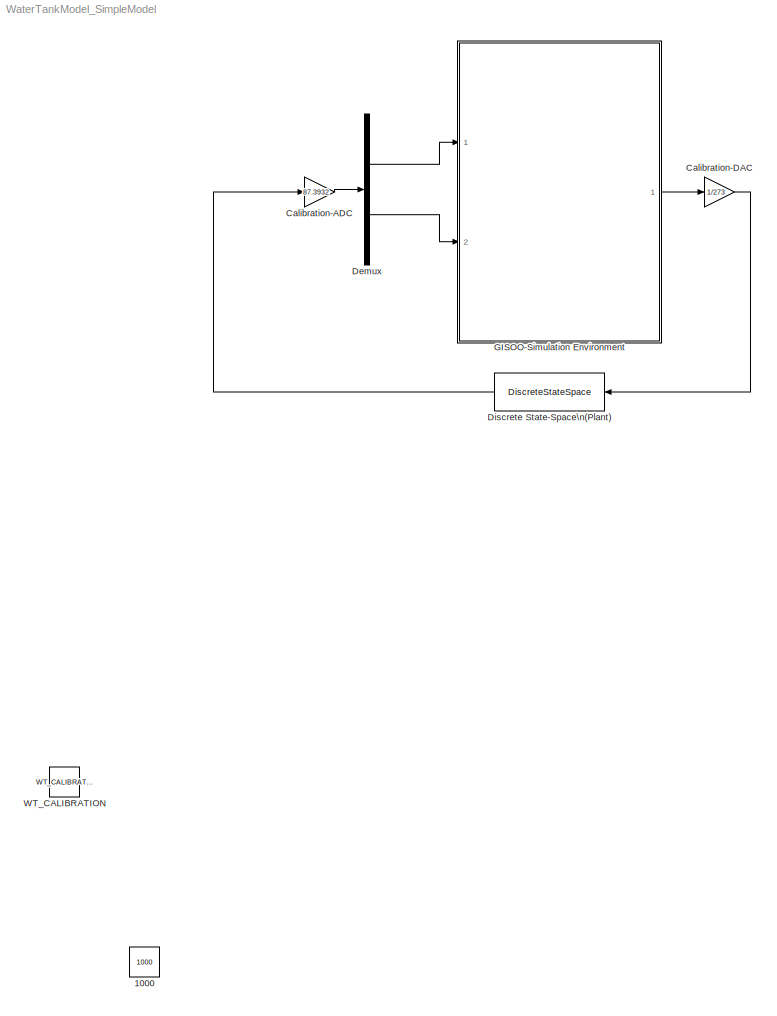
MODEL WaterTankModel_SimpleModel
KIND model
CONFIG InitFcn = initparametersDACADC\nWT_SerialCom_Model
BLOCK [Constant] 1000
  SID = 114
  Value = 1000
BLOCK [Gain] Calibration-ADC
  Gain = 87.3932
  OutDataTypeStr = Inherit: Inherit via internal rule
  ParamDataTypeStr = Inherit: Inherit via internal rule
  SID = 5
  SaturateOnIntegerOverflow = off
BLOCK [Gain] Calibration-DAC
  Gain = 1/273
  OutDataTypeStr = Inherit: Inherit via internal rule
  ParamDataTypeStr = Inherit: Inherit via internal rule
  SID = 14
  SaturateOnIntegerOverflow = off
BLOCK [Demux] Demux
  DisplayOption = bar
  Outputs = 2
  Ports = [1, 2]
  SID = 6
BLOCK [DiscreteStateSpace] Discrete State-Space\n(Plant)
  A = Ad
  B = Bd
  C = Cd
  D = Dd
  SID = 2
  SampleTime = -1
  X0 = x0
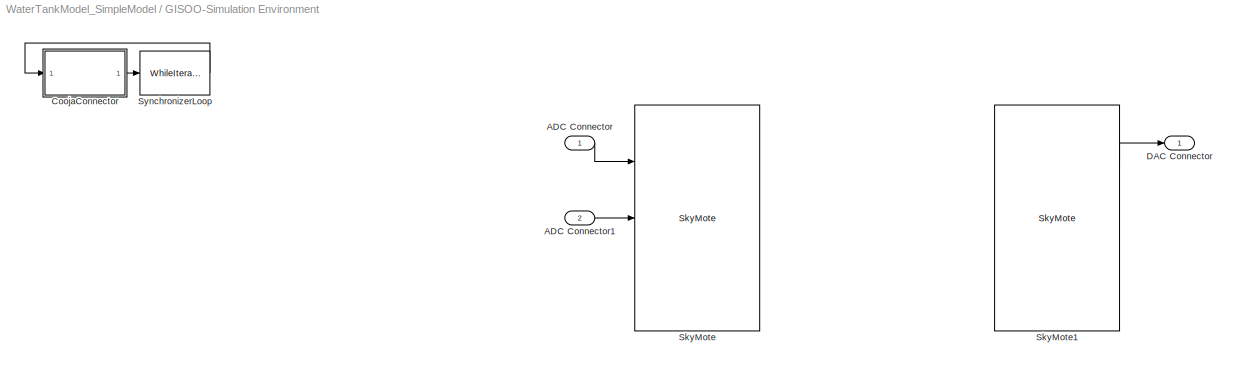
BLOCK [SubSystem] GISOO-Simulation Environment
  AncestorBlock = GisooLib/GISOO-Simulation Environment
  FunctionWithSeparateData = off
  MaskHideContents = off
  MinAlgLoopOccurrences = off
  Opaque = off
  Ports = [2, 1]
  PropExecContextOutsideSubsystem = off
  RTWSystemCode = Auto
  RequestExecContextInheritance = off
  SID = 157
  TreatAsAtomicUnit = on
BLOCK [Inport] GISOO-Simulation Environment/ADC Connector
  IconDisplay = Port number
  SID = 157:332
BLOCK [Inport] GISOO-Simulation Environment/ADC Connector1
  IconDisplay = Port number
  Port = 2
  SID = 157:333
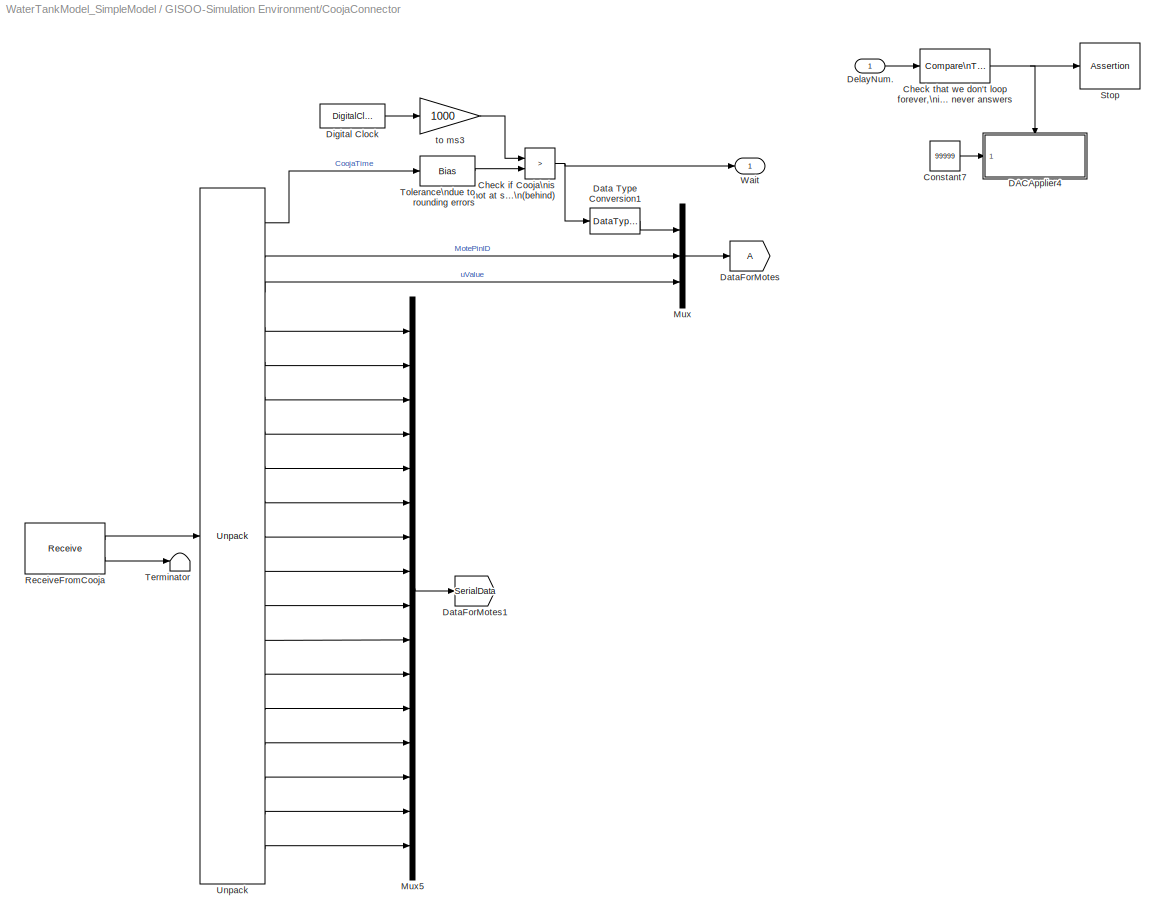
BLOCK [SubSystem] GISOO-Simulation Environment/CoojaConnector
  FunctionWithSeparateData = off
  MaskHideContents = off
  MinAlgLoopOccurrences = off
  Opaque = off
  Ports = [1, 1]
  PropExecContextOutsideSubsystem = off
  RTWSystemCode = Auto
  RequestExecContextInheritance = off
  SID = 157:275
BLOCK [RelationalOperator] GISOO-Simulation Environment/CoojaConnector/Check if Cooja\nis not at same time\n(behind)
  InputSameDT = off
  Operator = >
  OutDataTypeStr = boolean
  Ports = [2, 1]
  SID = 157:277
BLOCK [Reference] GISOO-Simulation Environment/CoojaConnector/Check that we don't loop forever,\nif Cooja never answers  REF=simulink/Logic and Bit\nOperations/Compare\nTo Constant
  OutDataTypeStr = uint8
  Ports = [1, 1]
  SID = 157:278
  SourceBlock = simulink/Logic and Bit\nOperations/Compare\nTo Constant
  SourceType = Compare To Constant
  ZeroCross = off
  const = 300000
  relop = <
BLOCK [Constant] GISOO-Simulation Environment/CoojaConnector/Constant7
  SID = 157:279
  Value = 99999
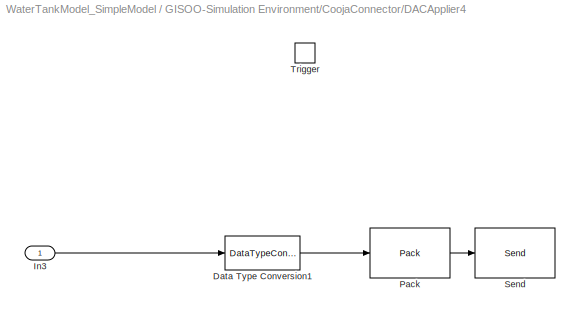
BLOCK [SubSystem] GISOO-Simulation Environment/CoojaConnector/DACApplier4
  AncestorBlock = BehdadLib/SIm_Cooj\nSynchronizer/Send
  FunctionWithSeparateData = off
  MaskHideContents = off
  MinAlgLoopOccurrences = off
  Opaque = off
  Ports = [1, 0, 0, 1]
  PropExecContextOutsideSubsystem = off
  RTWSystemCode = Auto
  RequestExecContextInheritance = off
  SID = 157:280
  TreatAsAtomicUnit = on
BLOCK [DataTypeConversion] GISOO-Simulation Environment/CoojaConnector/DACApplier4/Data Type Conversion1
  OutDataTypeStr = uint32
  RndMeth = Floor
  SID = 157:280:95
  SaturateOnIntegerOverflow = off
BLOCK [Inport] GISOO-Simulation Environment/CoojaConnector/DACApplier4/In3
  IconDisplay = Port number
  SID = 157:280:92
BLOCK [Reference] GISOO-Simulation Environment/CoojaConnector/DACApplier4/Pack  REF=xpclib/UDP/Pack
  Ports = [1, 1]
  SID = 157:280:93
  SourceBlock = xpclib/UDP/Pack
  SourceType = xpcany2byte
  byteAlign = 1
  datatypes = {'uint32'}
BLOCK [Reference] GISOO-Simulation Environment/CoojaConnector/DACApplier4/Send  REF=xpclib/UDP/Send
  Ports = [1]
  SID = 157:280:94
  SourceBlock = xpclib/UDP/Send
  SourceType = xpcudpbytesend
  ipAddress = 255.255.255.255
  ipPort = 18006
  localPort = -1
  sampletime = -1
  vblLen = off
BLOCK [TriggerPort] GISOO-Simulation Environment/CoojaConnector/DACApplier4/Trigger
  Ports = []
  SID = 157:280:91
  StatesWhenEnabling = held
BLOCK [DataTypeConversion] GISOO-Simulation Environment/CoojaConnector/Data Type Conversion1
  OutDataTypeStr = uint32
  RndMeth = Floor
  SID = 157:281
  SaturateOnIntegerOverflow = off
BLOCK [Goto] GISOO-Simulation Environment/CoojaConnector/DataForMotes
  SID = 157:282
  TagVisibility = global
BLOCK [Goto] GISOO-Simulation Environment/CoojaConnector/DataForMotes1
  GotoTag = SerialData
  SID = 157:283
  TagVisibility = global
BLOCK [Inport] GISOO-Simulation Environment/CoojaConnector/DelayNum.
  IconDisplay = Port number
  SID = 157:276
BLOCK [DigitalClock] GISOO-Simulation Environment/CoojaConnector/Digital Clock
  SID = 157:284
  SampleTime = -1
BLOCK [Mux] GISOO-Simulation Environment/CoojaConnector/Mux
  DisplayOption = bar
  Inputs = 3
  Ports = [3, 1]
  SID = 157:285
BLOCK [Mux] GISOO-Simulation Environment/CoojaConnector/Mux5
  DisplayOption = bar
  Inputs = 16
  Ports = [16, 1]
  SID = 157:286
BLOCK [Reference] GISOO-Simulation Environment/CoojaConnector/ReceiveFromCooja  REF=xpclib/UDP/Receive
  Ports = [0, 2]
  SID = 157:287
  SourceBlock = xpclib/UDP/Receive
  SourceType = xpcudpbytereceive
  ipAddress = 127.0.0.1
  ipPort = 55555
  sampletime = -1
  vblLen = off
  width = 28
BLOCK [Assertion] GISOO-Simulation Environment/CoojaConnector/Stop
  AssertionFailFcn = warning('No time-synchronization with ns-2');
  SID = 157:288
BLOCK [Terminator] GISOO-Simulation Environment/CoojaConnector/Terminator
  SID = 157:289
BLOCK [Bias] GISOO-Simulation Environment/CoojaConnector/Tolerance\ndue to rounding errors
  SID = 157:290
  SaturateOnIntegerOverflow = off
BLOCK [Reference] GISOO-Simulation Environment/CoojaConnector/Unpack  REF=xpclib/UDP/Unpack
  Ports = [1, 19]
  SID = 157:291
  SourceBlock = xpclib/UDP/Unpack
  SourceType = xpcbyte2any
  byteAlign = 1
  datatypes = {'uint32','uint32','uint32','uint8','uint8','uint8','uint8','uint8','uint8','uint8','uint8','uint8','uint8','uint8','uint8','uint8','uint8','uint8','uint8'}
  dimensions = {[1],[1],[1],[1],[1],[1],[1],[1],[1],[1],[1],[1],[1],[1],[1],[1],[1],[1],[1]}
BLOCK [Outport] GISOO-Simulation Environment/CoojaConnector/Wait
  IconDisplay = Port number
  SID = 157:293
BLOCK [Gain] GISOO-Simulation Environment/CoojaConnector/to ms3
  Gain = 1000
  OutDataTypeStr = Inherit: Inherit via back propagation
  ParamDataTypeStr = uint32
  SID = 157:292
  SaturateOnIntegerOverflow = off
BLOCK [Outport] GISOO-Simulation Environment/DAC Connector
  IconDisplay = Port number
  SID = 157:334
BLOCK [Reference] GISOO-Simulation Environment/SkyMote  REF=GisooLib1/SkyMote
  PacketType = 6
  Ports = [3, 3]
  SID = 157:330
  SourceBlock = GisooLib1/SkyMote
  moteID = 1
BLOCK [Reference] GISOO-Simulation Environment/SkyMote1  REF=GisooLib1/SkyMote
  PacketType = 6
  Ports = [3, 3]
  SID = 157:331
  SourceBlock = GisooLib1/SkyMote
  moteID = 4
BLOCK [WhileIterator] GISOO-Simulation Environment/SynchronizerLoop
  MaxIters = -1
  Ports = [1, 1]
  SID = 157:294
  ShowIterationPort = on
  WhileBlockType = do-while
BLOCK [Constant] WT_CALIBRATION
  SID = 145
  Value = WT_CALIBRATION
LINE Calibration-ADC:1 -> Demux:1
LINE Calibration-DAC:1 -> Discrete State-Space\n(Plant):1
LINE Demux:1 -> GISOO-Simulation Environment:1
LINE Demux:2 -> GISOO-Simulation Environment:2
LINE Discrete State-Space\n(Plant):1 -> Calibration-ADC:1
LINE GISOO-Simulation Environment/ADC Connector1:1 -> GISOO-Simulation Environment/SkyMote:2
LINE GISOO-Simulation Environment/ADC Connector:1 -> GISOO-Simulation Environment/SkyMote:1
NET GISOO-Simulation Environment/CoojaConnector/Check if Cooja\nis not at same time\n(behind):1 -> GISOO-Simulation Environment/CoojaConnector/Data Type Conversion1:1, GISOO-Simulation Environment/CoojaConnector/Wait:1
NET GISOO-Simulation Environment/CoojaConnector/Check that we don't loop forever,\nif Cooja never answers:1 -> GISOO-Simulation Environment/CoojaConnector/DACApplier4:trigger, GISOO-Simulation Environment/CoojaConnector/Stop:1
LINE GISOO-Simulation Environment/CoojaConnector/Constant7:1 -> GISOO-Simulation Environment/CoojaConnector/DACApplier4:1
LINE GISOO-Simulation Environment/CoojaConnector/DACApplier4/Data Type Conversion1:1 -> GISOO-Simulation Environment/CoojaConnector/DACApplier4/Pack:1
LINE GISOO-Simulation Environment/CoojaConnector/DACApplier4/In3:1 -> GISOO-Simulation Environment/CoojaConnector/DACApplier4/Data Type Conversion1:1
LINE GISOO-Simulation Environment/CoojaConnector/DACApplier4/Pack:1 -> GISOO-Simulation Environment/CoojaConnector/DACApplier4/Send:1
LINE GISOO-Simulation Environment/CoojaConnector/Data Type Conversion1:1 -> GISOO-Simulation Environment/CoojaConnector/Mux:1
LINE GISOO-Simulation Environment/CoojaConnector/DelayNum.:1 -> GISOO-Simulation Environment/CoojaConnector/Check that we don't loop forever,\nif Cooja never answers:1
LINE GISOO-Simulation Environment/CoojaConnector/Digital Clock:1 -> GISOO-Simulation Environment/CoojaConnector/to ms3:1
LINE GISOO-Simulation Environment/CoojaConnector/Mux5:1 -> GISOO-Simulation Environment/CoojaConnector/DataForMotes1:1
LINE GISOO-Simulation Environment/CoojaConnector/Mux:1 -> GISOO-Simulation Environment/CoojaConnector/DataForMotes:1
LINE GISOO-Simulation Environment/CoojaConnector/ReceiveFromCooja:1 -> GISOO-Simulation Environment/CoojaConnector/Unpack:1
LINE GISOO-Simulation Environment/CoojaConnector/ReceiveFromCooja:2 -> GISOO-Simulation Environment/CoojaConnector/Terminator:1
LINE GISOO-Simulation Environment/CoojaConnector/Tolerance\ndue to rounding errors:1 -> GISOO-Simulation Environment/CoojaConnector/Check if Cooja\nis not at same time\n(behind):2
LINE GISOO-Simulation Environment/CoojaConnector/Unpack:1 -> GISOO-Simulation Environment/CoojaConnector/Tolerance\ndue to rounding errors:1
LINE GISOO-Simulation Environment/CoojaConnector/Unpack:10 -> GISOO-Simulation Environment/CoojaConnector/Mux5:7
LINE GISOO-Simulation Environment/CoojaConnector/Unpack:11 -> GISOO-Simulation Environment/CoojaConnector/Mux5:8
LINE GISOO-Simulation Environment/CoojaConnector/Unpack:12 -> GISOO-Simulation Environment/CoojaConnector/Mux5:9
LINE GISOO-Simulation Environment/CoojaConnector/Unpack:13 -> GISOO-Simulation Environment/CoojaConnector/Mux5:10
LINE GISOO-Simulation Environment/CoojaConnector/Unpack:14 -> GISOO-Simulation Environment/CoojaConnector/Mux5:11
LINE GISOO-Simulation Environment/CoojaConnector/Unpack:15 -> GISOO-Simulation Environment/CoojaConnector/Mux5:12
LINE GISOO-Simulation Environment/CoojaConnector/Unpack:16 -> GISOO-Simulation Environment/CoojaConnector/Mux5:13
LINE GISOO-Simulation Environment/CoojaConnector/Unpack:17 -> GISOO-Simulation Environment/CoojaConnector/Mux5:14
LINE GISOO-Simulation Environment/CoojaConnector/Unpack:18 -> GISOO-Simulation Environment/CoojaConnector/Mux5:15
LINE GISOO-Simulation Environment/CoojaConnector/Unpack:19 -> GISOO-Simulation Environment/CoojaConnector/Mux5:16
LINE GISOO-Simulation Environment/CoojaConnector/Unpack:2 -> GISOO-Simulation Environment/CoojaConnector/Mux:2
LINE GISOO-Simulation Environment/CoojaConnector/Unpack:3 -> GISOO-Simulation Environment/CoojaConnector/Mux:3
LINE GISOO-Simulation Environment/CoojaConnector/Unpack:4 -> GISOO-Simulation Environment/CoojaConnector/Mux5:1
LINE GISOO-Simulation Environment/CoojaConnector/Unpack:5 -> GISOO-Simulation Environment/CoojaConnector/Mux5:2
LINE GISOO-Simulation Environment/CoojaConnector/Unpack:6 -> GISOO-Simulation Environment/CoojaConnector/Mux5:3
LINE GISOO-Simulation Environment/CoojaConnector/Unpack:7 -> GISOO-Simulation Environment/CoojaConnector/Mux5:4
LINE GISOO-Simulation Environment/CoojaConnector/Unpack:8 -> GISOO-Simulation Environment/CoojaConnector/Mux5:5
LINE GISOO-Simulation Environment/CoojaConnector/Unpack:9 -> GISOO-Simulation Environment/CoojaConnector/Mux5:6
LINE GISOO-Simulation Environment/CoojaConnector/to ms3:1 -> GISOO-Simulation Environment/CoojaConnector/Check if Cooja\nis not at same time\n(behind):1
LINE GISOO-Simulation Environment/CoojaConnector:1 -> GISOO-Simulation Environment/SynchronizerLoop:1
LINE GISOO-Simulation Environment/SkyMote1:1 -> GISOO-Simulation Environment/DAC Connector:1
LINE GISOO-Simulation Environment/SynchronizerLoop:1 -> GISOO-Simulation Environment/CoojaConnector:1
LINE GISOO-Simulation Environment:1 -> Calibration-DAC:1
note: NET lines group one-source signal fan-out (src -> all destinations, sorted); 1:1 wires keep LINE
